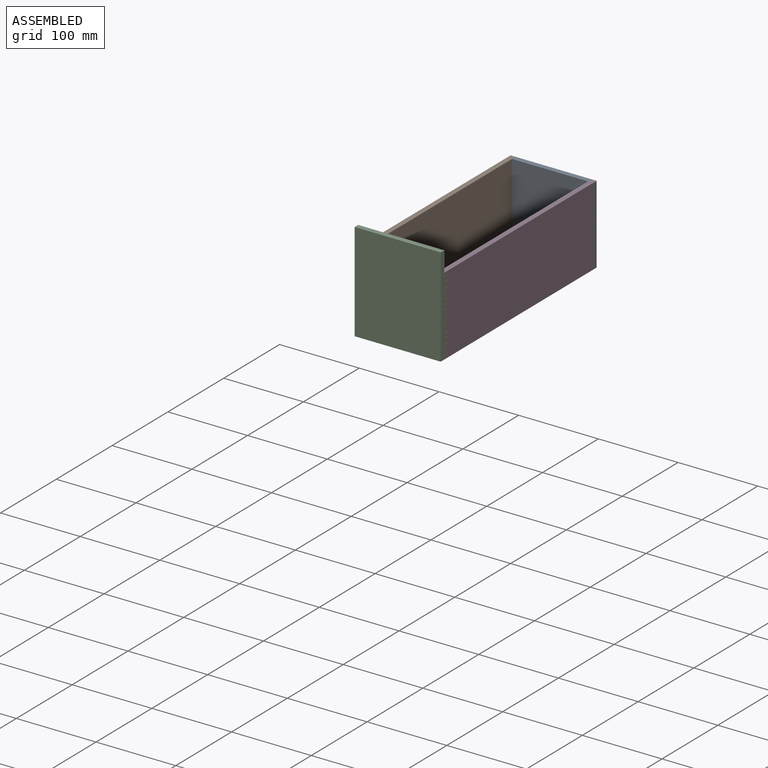
[diagram: assembled view]
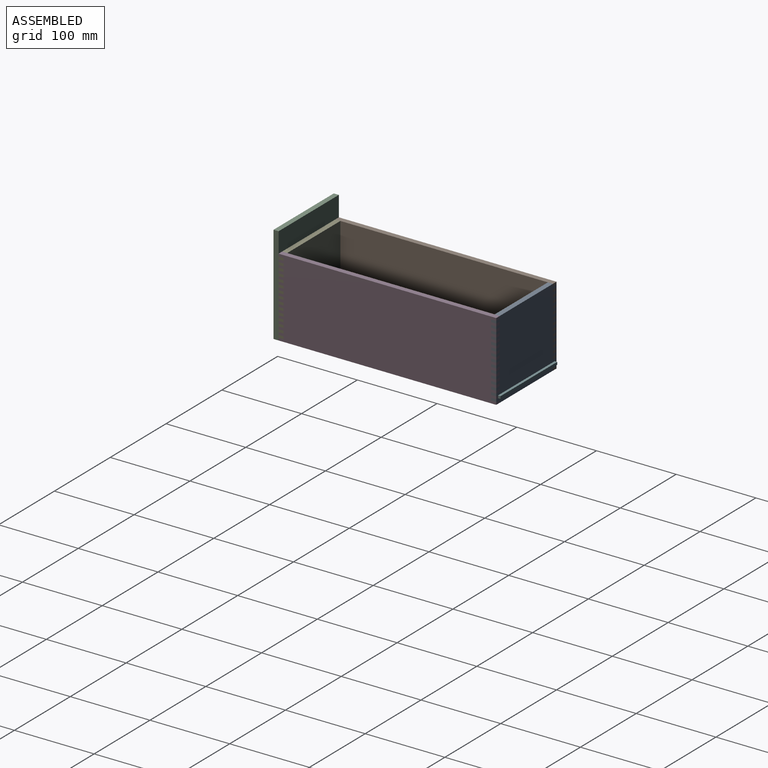
[diagram: assembled view, second angle]
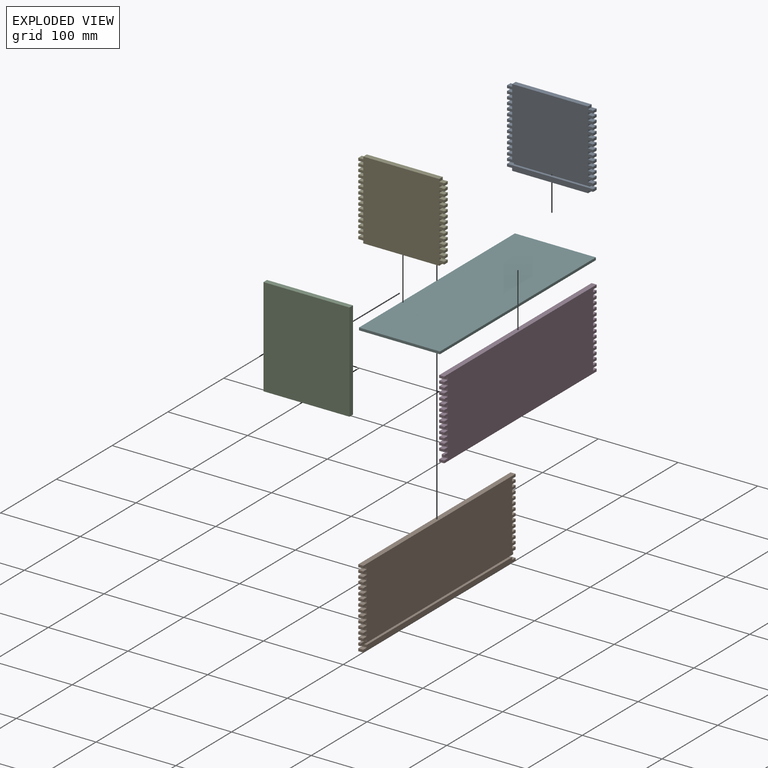
[diagram: exploded view]
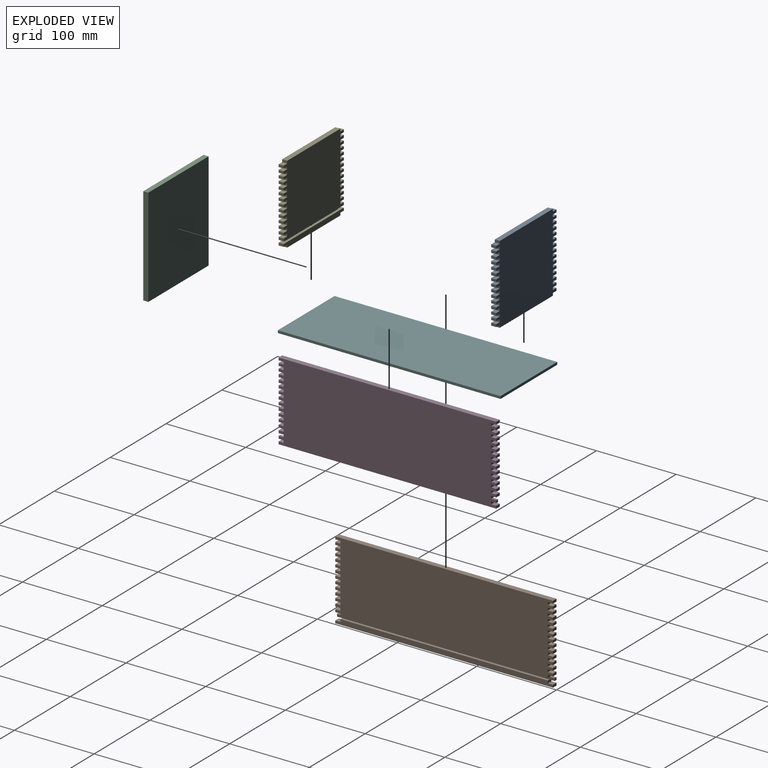
[diagram: exploded view, second angle]
ASSEMBLY  parts=6 mates=5
PART A: 126 faces, bbox 108x6.4x98.4 mm
  f0: plane 107.95x6.35mm, normal (0,-1,0), area 645.2mm2, adj f2,f17,f61,f64,f65,f68,f124,f125
  f1: plane 3.18x3.18mm, normal (-1,0,0), area 10.1mm2, adj f18,f60,f61,f66
  f2: plane 6.35x3.18mm, normal (-1,0,0), area 20.2mm2, adj f0,f18,f61,f65
  f3: plane 6.35x3.18mm, normal (-1,0,0), area 20.2mm2, adj f18,f20,f22,f63
  f4: plane 6.35x3.18mm, normal (-1,0,0), area 20.2mm2, adj f18,f20,f23,f25
  f5: plane 6.35x3.18mm, normal (-1,0,0), area 20.2mm2, adj f18,f20,f26,f28
  f6: plane 6.35x3.18mm, normal (-1,0,0), area 20.2mm2, adj f18,f20,f29,f31
  f7: plane 6.35x3.18mm, normal (-1,0,0), area 20.2mm2, adj f18,f20,f32,f34
  f8: plane 6.35x3.18mm, normal (-1,0,0), area 20.2mm2, adj f18,f20,f35,f37
  f9: plane 6.35x3.18mm, normal (-1,0,0), area 20.2mm2, adj f18,f20,f38,f40
  f10: plane 6.35x3.18mm, normal (-1,0,0), area 20.2mm2, adj f18,f20,f41,f43
  f11: plane 6.35x3.18mm, normal (-1,0,0), area 20.2mm2, adj f18,f20,f44,f46
  f12: plane 6.35x3.18mm, normal (-1,0,0), area 20.2mm2, adj f18,f20,f47,f49
  f13: plane 6.35x3.18mm, normal (-1,0,0), area 20.2mm2, adj f18,f20,f50,f52
  f14: plane 6.35x3.18mm, normal (-1,0,0), area 20.2mm2, adj f18,f20,f53,f55
  f15: plane 6.35x3.18mm, normal (-1,0,0), area 20.2mm2, adj f18,f20,f56,f58
  f16: plane 6.35x3.18mm, normal (-1,0,0), area 20.2mm2, adj f18,f20,f59,f60
  f17: plane 95.25x6.35mm, normal (0,0,-1), area 604.8mm2, adj f0,f18,f64,f124
  f18: plane 107.95x98.43mm, normal (0,1,0), area 9979.8mm2, adj f1,f2,f3,f4,f5,f6,f7,f8
  f19: plane 95.25x6.35mm, normal (0,0,1), area 604.8mm2, adj f18,f20,f62,f122
  f20: plane 107.95x88.9mm, normal (0,-1,0), area 9032.2mm2, adj f3,f4,f5,f6,f7,f8,f9,f10
  f21: plane 6.35x3.18mm, normal (-1,0,0), area 20.2mm2, adj f18,f20,f22,f23
  f22: plane 6.35x6.35mm, normal (0,0,-1), area 40.3mm2, adj f3,f18,f20,f21
  f23: plane 6.35x6.35mm, normal (0,0,1), area 40.3mm2, adj f4,f18,f20,f21
  f24: plane 6.35x3.18mm, normal (-1,0,0), area 20.2mm2, adj f18,f20,f25,f26
  f25: plane 6.35x6.35mm, normal (0,0,-1), area 40.3mm2, adj f4,f18,f20,f24
  f26: plane 6.35x6.35mm, normal (0,0,1), area 40.3mm2, adj f5,f18,f20,f24
  f27: plane 6.35x3.18mm, normal (-1,0,0), area 20.2mm2, adj f18,f20,f28,f29
  f28: plane 6.35x6.35mm, normal (0,0,-1), area 40.3mm2, adj f5,f18,f20,f27
  f29: plane 6.35x6.35mm, normal (0,0,1), area 40.3mm2, adj f6,f18,f20,f27
  f30: plane 6.35x3.18mm, normal (-1,0,0), area 20.2mm2, adj f18,f20,f31,f32
  f31: plane 6.35x6.35mm, normal (0,0,-1), area 40.3mm2, adj f6,f18,f20,f30
  f32: plane 6.35x6.35mm, normal (0,0,1), area 40.3mm2, adj f7,f18,f20,f30
  f33: plane 6.35x3.18mm, normal (-1,0,0), area 20.2mm2, adj f18,f20,f34,f35
  f34: plane 6.35x6.35mm, normal (0,0,-1), area 40.3mm2, adj f7,f18,f20,f33
  f35: plane 6.35x6.35mm, normal (0,0,1), area 40.3mm2, adj f8,f18,f20,f33
  f36: plane 6.35x3.18mm, normal (-1,0,0), area 20.2mm2, adj f18,f20,f37,f38
  f37: plane 6.35x6.35mm, normal (0,0,-1), area 40.3mm2, adj f8,f18,f20,f36
  f38: plane 6.35x6.35mm, normal (0,0,1), area 40.3mm2, adj f9,f18,f20,f36
  f39: plane 6.35x3.18mm, normal (-1,0,0), area 20.2mm2, adj f18,f20,f40,f41
  f40: plane 6.35x6.35mm, normal (0,0,-1), area 40.3mm2, adj f9,f18,f20,f39
  f41: plane 6.35x6.35mm, normal (0,0,1), area 40.3mm2, adj f10,f18,f20,f39
  f42: plane 6.35x3.18mm, normal (-1,0,0), area 20.2mm2, adj f18,f20,f43,f44
  f43: plane 6.35x6.35mm, normal (0,0,-1), area 40.3mm2, adj f10,f18,f20,f42
  f44: plane 6.35x6.35mm, normal (0,0,1), area 40.3mm2, adj f11,f18,f20,f42
  f45: plane 6.35x3.18mm, normal (-1,0,0), area 20.2mm2, adj f18,f20,f46,f47
  f46: plane 6.35x6.35mm, normal (0,0,-1), area 40.3mm2, adj f11,f18,f20,f45
  f47: plane 6.35x6.35mm, normal (0,0,1), area 40.3mm2, adj f12,f18,f20,f45
  f48: plane 6.35x3.18mm, normal (-1,0,0), area 20.2mm2, adj f18,f20,f49,f50
  f49: plane 6.35x6.35mm, normal (0,0,-1), area 40.3mm2, adj f12,f18,f20,f48
  f50: plane 6.35x6.35mm, normal (0,0,1), area 40.3mm2, adj f13,f18,f20,f48
  f51: plane 6.35x3.18mm, normal (-1,0,0), area 20.2mm2, adj f18,f20,f52,f53
  f52: plane 6.35x6.35mm, normal (0,0,-1), area 40.3mm2, adj f13,f18,f20,f51
  f53: plane 6.35x6.35mm, normal (0,0,1), area 40.3mm2, adj f14,f18,f20,f51
  f54: plane 6.35x3.18mm, normal (-1,0,0), area 20.2mm2, adj f18,f20,f55,f56
  f55: plane 6.35x6.35mm, normal (0,0,-1), area 40.3mm2, adj f14,f18,f20,f54
  f56: plane 6.35x6.35mm, normal (0,0,1), area 40.3mm2, adj f15,f18,f20,f54
  f57: plane 6.35x3.18mm, normal (-1,0,0), area 20.2mm2, adj f18,f20,f58,f59
  f58: plane 6.35x6.35mm, normal (0,0,-1), area 40.3mm2, adj f15,f18,f20,f57
  f59: plane 6.35x6.35mm, normal (0,0,1), area 40.3mm2, adj f16,f18,f20,f57
  f60: plane 107.95x6.35mm, normal (0,0,-1), area 383.1mm2, adj f1,f16,f18,f20,f66,f67,f82
  f61: plane 107.95x6.35mm, normal (0,0,1), area 383.1mm2, adj f0,f1,f2,f18,f66,f67,f68
  f62: plane 6.35x3.18mm, normal (-1,0,0), area 20.2mm2, adj f18,f19,f20,f63
  f63: plane 6.35x6.35mm, normal (0,0,1), area 40.3mm2, adj f3,f18,f20,f62
  f64: plane 6.35x3.18mm, normal (-1,0,0), area 20.2mm2, adj f0,f17,f18,f65
  f65: plane 6.35x6.35mm, normal (0,0,-1), area 40.3mm2, adj f0,f2,f18,f64
  f66: plane 95.25x3.18mm, normal (0,-1,0), area 302.4mm2, adj f1,f60,f61,f67
  f67: plane 3.18x3.18mm, normal (1,0,0), area 10.1mm2, adj f18,f60,f61,f66
  f68: plane 6.35x3.18mm, normal (1,0,0), area 20.2mm2, adj f0,f18,f61,f125
  f69: plane 6.35x3.18mm, normal (1,0,0), area 20.2mm2, adj f18,f20,f84,f123
  f70: plane 6.35x3.18mm, normal (1,0,0), area 20.2mm2, adj f18,f20,f85,f87
  f71: plane 6.35x3.18mm, normal (1,0,0), area 20.2mm2, adj f18,f20,f88,f90
  f72: plane 6.35x3.18mm, normal (1,0,0), area 20.2mm2, adj f18,f20,f91,f93
  f73: plane 6.35x3.18mm, normal (1,0,0), area 20.2mm2, adj f18,f20,f94,f96
  f74: plane 6.35x3.18mm, normal (1,0,0), area 20.2mm2, adj f18,f20,f97,f99
  f75: plane 6.35x3.18mm, normal (1,0,0), area 20.2mm2, adj f18,f20,f100,f102
  f76: plane 6.35x3.18mm, normal (1,0,0), area 20.2mm2, adj f18,f20,f103,f105
  f77: plane 6.35x3.18mm, normal (1,0,0), area 20.2mm2, adj f18,f20,f106,f108
  f78: plane 6.35x3.18mm, normal (1,0,0), area 20.2mm2, adj f18,f20,f109,f111
  f79: plane 6.35x3.18mm, normal (1,0,0), area 20.2mm2, adj f18,f20,f112,f114
  f80: plane 6.35x3.18mm, normal (1,0,0), area 20.2mm2, adj f18,f20,f115,f117
  f81: plane 6.35x3.18mm, normal (1,0,0), area 20.2mm2, adj f18,f20,f118,f120
  f82: plane 6.35x3.18mm, normal (1,0,0), area 20.2mm2, adj f18,f20,f60,f121
  f83: plane 6.35x3.18mm, normal (1,0,0), area 20.2mm2, adj f18,f20,f84,f85
  f84: plane 6.35x6.35mm, normal (0,0,-1), area 40.3mm2, adj f18,f20,f69,f83
  f85: plane 6.35x6.35mm, normal (0,0,1), area 40.3mm2, adj f18,f20,f70,f83
  f86: plane 6.35x3.18mm, normal (1,0,0), area 20.2mm2, adj f18,f20,f87,f88
  f87: plane 6.35x6.35mm, normal (0,0,-1), area 40.3mm2, adj f18,f20,f70,f86
  f88: plane 6.35x6.35mm, normal (0,0,1), area 40.3mm2, adj f18,f20,f71,f86
  f89: plane 6.35x3.18mm, normal (1,0,0), area 20.2mm2, adj f18,f20,f90,f91
  f90: plane 6.35x6.35mm, normal (0,0,-1), area 40.3mm2, adj f18,f20,f71,f89
  f91: plane 6.35x6.35mm, normal (0,0,1), area 40.3mm2, adj f18,f20,f72,f89
  f92: plane 6.35x3.18mm, normal (1,0,0), area 20.2mm2, adj f18,f20,f93,f94
  f93: plane 6.35x6.35mm, normal (0,0,-1), area 40.3mm2, adj f18,f20,f72,f92
  f94: plane 6.35x6.35mm, normal (0,0,1), area 40.3mm2, adj f18,f20,f73,f92
  f95: plane 6.35x3.18mm, normal (1,0,0), area 20.2mm2, adj f18,f20,f96,f97
  f96: plane 6.35x6.35mm, normal (0,0,-1), area 40.3mm2, adj f18,f20,f73,f95
  f97: plane 6.35x6.35mm, normal (0,0,1), area 40.3mm2, adj f18,f20,f74,f95
  f98: plane 6.35x3.18mm, normal (1,0,0), area 20.2mm2, adj f18,f20,f99,f100
  f99: plane 6.35x6.35mm, normal (0,0,-1), area 40.3mm2, adj f18,f20,f74,f98
  f100: plane 6.35x6.35mm, normal (0,0,1), area 40.3mm2, adj f18,f20,f75,f98
  f101: plane 6.35x3.18mm, normal (1,0,0), area 20.2mm2, adj f18,f20,f102,f103
  f102: plane 6.35x6.35mm, normal (0,0,-1), area 40.3mm2, adj f18,f20,f75,f101
  f103: plane 6.35x6.35mm, normal (0,0,1), area 40.3mm2, adj f18,f20,f76,f101
  f104: plane 6.35x3.18mm, normal (1,0,0), area 20.2mm2, adj f18,f20,f105,f106
  f105: plane 6.35x6.35mm, normal (0,0,-1), area 40.3mm2, adj f18,f20,f76,f104
  f106: plane 6.35x6.35mm, normal (0,0,1), area 40.3mm2, adj f18,f20,f77,f104
  f107: plane 6.35x3.18mm, normal (1,0,0), area 20.2mm2, adj f18,f20,f108,f109
  f108: plane 6.35x6.35mm, normal (0,0,-1), area 40.3mm2, adj f18,f20,f77,f107
  f109: plane 6.35x6.35mm, normal (0,0,1), area 40.3mm2, adj f18,f20,f78,f107
  f110: plane 6.35x3.18mm, normal (1,0,0), area 20.2mm2, adj f18,f20,f111,f112
  f111: plane 6.35x6.35mm, normal (0,0,-1), area 40.3mm2, adj f18,f20,f78,f110
  f112: plane 6.35x6.35mm, normal (0,0,1), area 40.3mm2, adj f18,f20,f79,f110
  f113: plane 6.35x3.18mm, normal (1,0,0), area 20.2mm2, adj f18,f20,f114,f115
  f114: plane 6.35x6.35mm, normal (0,0,-1), area 40.3mm2, adj f18,f20,f79,f113
  f115: plane 6.35x6.35mm, normal (0,0,1), area 40.3mm2, adj f18,f20,f80,f113
  f116: plane 6.35x3.18mm, normal (1,0,0), area 20.2mm2, adj f18,f20,f117,f118
  f117: plane 6.35x6.35mm, normal (0,0,-1), area 40.3mm2, adj f18,f20,f80,f116
  f118: plane 6.35x6.35mm, normal (0,0,1), area 40.3mm2, adj f18,f20,f81,f116
  f119: plane 6.35x3.18mm, normal (1,0,0), area 20.2mm2, adj f18,f20,f120,f121
  f120: plane 6.35x6.35mm, normal (0,0,-1), area 40.3mm2, adj f18,f20,f81,f119
  f121: plane 6.35x6.35mm, normal (0,0,1), area 40.3mm2, adj f18,f20,f82,f119
  f122: plane 6.35x3.18mm, normal (1,0,0), area 20.2mm2, adj f18,f19,f20,f123
  f123: plane 6.35x6.35mm, normal (0,0,1), area 40.3mm2, adj f18,f20,f69,f122
  f124: plane 6.35x3.18mm, normal (1,0,0), area 20.2mm2, adj f0,f17,f18,f125
  f125: plane 6.35x6.35mm, normal (0,0,-1), area 40.3mm2, adj f0,f18,f68,f124
PART B: 130 faces, bbox 6.4x273.1x98.4 mm
  f0: plane 3.18x3.18mm, normal (0,1,0), area 10.1mm2, adj f3,f60,f65,f68
  f1: plane 273.05x88.9mm, normal (1,0,0), area 23709.6mm2, adj f4,f5,f6,f7,f8,f9,f10,f11
  f2: plane 6.35x3.18mm, normal (0,1,0), area 20.2mm2, adj f3,f18,f20,f63
  f3: plane 273.05x98.43mm, normal (-1,0,0), area 26270.1mm2, adj f0,f2,f4,f5,f6,f7,f8,f9
  f4: plane 6.35x3.18mm, normal (0,1,0), area 20.2mm2, adj f1,f3,f57,f62
  f5: plane 6.35x3.18mm, normal (0,1,0), area 20.2mm2, adj f1,f3,f54,f59
  f6: plane 6.35x3.18mm, normal (0,1,0), area 20.2mm2, adj f1,f3,f51,f56
  f7: plane 6.35x3.18mm, normal (0,1,0), area 20.2mm2, adj f1,f3,f48,f53
  f8: plane 6.35x3.18mm, normal (0,1,0), area 20.2mm2, adj f1,f3,f45,f50
  f9: plane 6.35x3.18mm, normal (0,1,0), area 20.2mm2, adj f1,f3,f42,f47
  f10: plane 6.35x3.18mm, normal (0,1,0), area 20.2mm2, adj f1,f3,f39,f44
  f11: plane 6.35x3.18mm, normal (0,1,0), area 20.2mm2, adj f1,f3,f36,f41
  f12: plane 6.35x3.18mm, normal (0,1,0), area 20.2mm2, adj f1,f3,f33,f38
  f13: plane 6.35x3.18mm, normal (0,1,0), area 20.2mm2, adj f1,f3,f30,f35
  f14: plane 6.35x3.18mm, normal (0,1,0), area 20.2mm2, adj f1,f3,f27,f32
  f15: plane 6.35x3.18mm, normal (0,1,0), area 20.2mm2, adj f1,f3,f24,f29
  f16: plane 6.35x3.18mm, normal (0,1,0), area 20.2mm2, adj f1,f3,f21,f26
  f17: plane 273.05x6.35mm, normal (0,0,1), area 1733.9mm2, adj f1,f3,f19,f84
  f18: plane 273.05x6.35mm, normal (0,0,-1), area 1733.9mm2, adj f2,f3,f20,f70
  f19: plane 6.35x3.18mm, normal (0,1,0), area 20.2mm2, adj f1,f3,f17,f23
  f20: plane 273.05x6.35mm, normal (1,0,0), area 1693.5mm2, adj f2,f18,f63,f64,f67,f70,f127,f128
  f21: plane 6.35x6.35mm, normal (0,0,1), area 40.3mm2, adj f1,f3,f16,f22
  f22: plane 6.35x3.18mm, normal (0,1,0), area 20.2mm2, adj f1,f3,f21,f23
  f23: plane 6.35x6.35mm, normal (0,0,-1), area 40.3mm2, adj f1,f3,f19,f22
  f24: plane 6.35x6.35mm, normal (0,0,1), area 40.3mm2, adj f1,f3,f15,f25
  f25: plane 6.35x3.18mm, normal (0,1,0), area 20.2mm2, adj f1,f3,f24,f26
  f26: plane 6.35x6.35mm, normal (0,0,-1), area 40.3mm2, adj f1,f3,f16,f25
  f27: plane 6.35x6.35mm, normal (0,0,1), area 40.3mm2, adj f1,f3,f14,f28
  f28: plane 6.35x3.18mm, normal (0,1,0), area 20.2mm2, adj f1,f3,f27,f29
  f29: plane 6.35x6.35mm, normal (0,0,-1), area 40.3mm2, adj f1,f3,f15,f28
  f30: plane 6.35x6.35mm, normal (0,0,1), area 40.3mm2, adj f1,f3,f13,f31
  f31: plane 6.35x3.18mm, normal (0,1,0), area 20.2mm2, adj f1,f3,f30,f32
  f32: plane 6.35x6.35mm, normal (0,0,-1), area 40.3mm2, adj f1,f3,f14,f31
  f33: plane 6.35x6.35mm, normal (0,0,1), area 40.3mm2, adj f1,f3,f12,f34
  f34: plane 6.35x3.18mm, normal (0,1,0), area 20.2mm2, adj f1,f3,f33,f35
  f35: plane 6.35x6.35mm, normal (0,0,-1), area 40.3mm2, adj f1,f3,f13,f34
  f36: plane 6.35x6.35mm, normal (0,0,1), area 40.3mm2, adj f1,f3,f11,f37
  f37: plane 6.35x3.18mm, normal (0,1,0), area 20.2mm2, adj f1,f3,f36,f38
  f38: plane 6.35x6.35mm, normal (0,0,-1), area 40.3mm2, adj f1,f3,f12,f37
  f39: plane 6.35x6.35mm, normal (0,0,1), area 40.3mm2, adj f1,f3,f10,f40
  f40: plane 6.35x3.18mm, normal (0,1,0), area 20.2mm2, adj f1,f3,f39,f41
  f41: plane 6.35x6.35mm, normal (0,0,-1), area 40.3mm2, adj f1,f3,f11,f40
  f42: plane 6.35x6.35mm, normal (0,0,1), area 40.3mm2, adj f1,f3,f9,f43
  f43: plane 6.35x3.18mm, normal (0,1,0), area 20.2mm2, adj f1,f3,f42,f44
  f44: plane 6.35x6.35mm, normal (0,0,-1), area 40.3mm2, adj f1,f3,f10,f43
  f45: plane 6.35x6.35mm, normal (0,0,1), area 40.3mm2, adj f1,f3,f8,f46
  f46: plane 6.35x3.18mm, normal (0,1,0), area 20.2mm2, adj f1,f3,f45,f47
  f47: plane 6.35x6.35mm, normal (0,0,-1), area 40.3mm2, adj f1,f3,f9,f46
  f48: plane 6.35x6.35mm, normal (0,0,1), area 40.3mm2, adj f1,f3,f7,f49
  f49: plane 6.35x3.18mm, normal (0,1,0), area 20.2mm2, adj f1,f3,f48,f50
  f50: plane 6.35x6.35mm, normal (0,0,-1), area 40.3mm2, adj f1,f3,f8,f49
  f51: plane 6.35x6.35mm, normal (0,0,1), area 40.3mm2, adj f1,f3,f6,f52
  f52: plane 6.35x3.18mm, normal (0,1,0), area 20.2mm2, adj f1,f3,f51,f53
  f53: plane 6.35x6.35mm, normal (0,0,-1), area 40.3mm2, adj f1,f3,f7,f52
  f54: plane 6.35x6.35mm, normal (0,0,1), area 40.3mm2, adj f1,f3,f5,f55
  f55: plane 6.35x3.18mm, normal (0,1,0), area 20.2mm2, adj f1,f3,f54,f56
  f56: plane 6.35x6.35mm, normal (0,0,-1), area 40.3mm2, adj f1,f3,f6,f55
  f57: plane 6.35x6.35mm, normal (0,0,1), area 40.3mm2, adj f1,f3,f4,f58
  f58: plane 6.35x3.18mm, normal (0,1,0), area 20.2mm2, adj f1,f3,f57,f59
  f59: plane 6.35x6.35mm, normal (0,0,-1), area 40.3mm2, adj f1,f3,f5,f58
  f60: plane 6.35x3.18mm, normal (0,0,1), area 20.2mm2, adj f0,f3,f61,f68
  f61: plane 6.35x3.18mm, normal (0,1,0), area 20.2mm2, adj f1,f3,f60,f62,f66
  f62: plane 6.35x6.35mm, normal (0,0,-1), area 40.3mm2, adj f1,f3,f4,f61
  f63: plane 6.35x6.35mm, normal (0,0,1), area 40.3mm2, adj f2,f3,f20,f64
  f64: plane 6.35x3.18mm, normal (0,1,0), area 20.2mm2, adj f3,f20,f63,f65,f67
  f65: plane 6.35x3.18mm, normal (0,0,-1), area 20.2mm2, adj f0,f3,f64,f68
  f66: plane 260.35x3.18mm, normal (0,0,-1), area 826.6mm2, adj f1,f61,f68,f125
  f67: plane 260.35x3.18mm, normal (0,0,1), area 826.6mm2, adj f20,f64,f68,f128
  f68: plane 273.05x3.18mm, normal (1,0,0), area 866.9mm2, adj f0,f60,f65,f66,f67,f69,f124,f129
  f69: plane 3.18x3.18mm, normal (0,-1,0), area 10.1mm2, adj f3,f68,f124,f129
  f70: plane 6.35x3.18mm, normal (0,-1,0), area 20.2mm2, adj f3,f18,f20,f127
  f71: plane 6.35x3.18mm, normal (0,-1,0), area 20.2mm2, adj f1,f3,f121,f126
  f72: plane 6.35x3.18mm, normal (0,-1,0), area 20.2mm2, adj f1,f3,f118,f123
  f73: plane 6.35x3.18mm, normal (0,-1,0), area 20.2mm2, adj f1,f3,f115,f120
  f74: plane 6.35x3.18mm, normal (0,-1,0), area 20.2mm2, adj f1,f3,f112,f117
  f75: plane 6.35x3.18mm, normal (0,-1,0), area 20.2mm2, adj f1,f3,f109,f114
  f76: plane 6.35x3.18mm, normal (0,-1,0), area 20.2mm2, adj f1,f3,f106,f111
  f77: plane 6.35x3.18mm, normal (0,-1,0), area 20.2mm2, adj f1,f3,f103,f108
  f78: plane 6.35x3.18mm, normal (0,-1,0), area 20.2mm2, adj f1,f3,f100,f105
  f79: plane 6.35x3.18mm, normal (0,-1,0), area 20.2mm2, adj f1,f3,f97,f102
  f80: plane 6.35x3.18mm, normal (0,-1,0), area 20.2mm2, adj f1,f3,f94,f99
  f81: plane 6.35x3.18mm, normal (0,-1,0), area 20.2mm2, adj f1,f3,f91,f96
  f82: plane 6.35x3.18mm, normal (0,-1,0), area 20.2mm2, adj f1,f3,f88,f93
  f83: plane 6.35x3.18mm, normal (0,-1,0), area 20.2mm2, adj f1,f3,f85,f90
  f84: plane 6.35x3.18mm, normal (0,-1,0), area 20.2mm2, adj f1,f3,f17,f87
  f85: plane 6.35x6.35mm, normal (0,0,1), area 40.3mm2, adj f1,f3,f83,f86
  f86: plane 6.35x3.18mm, normal (0,-1,0), area 20.2mm2, adj f1,f3,f85,f87
  f87: plane 6.35x6.35mm, normal (0,0,-1), area 40.3mm2, adj f1,f3,f84,f86
  f88: plane 6.35x6.35mm, normal (0,0,1), area 40.3mm2, adj f1,f3,f82,f89
  f89: plane 6.35x3.18mm, normal (0,-1,0), area 20.2mm2, adj f1,f3,f88,f90
  f90: plane 6.35x6.35mm, normal (0,0,-1), area 40.3mm2, adj f1,f3,f83,f89
  f91: plane 6.35x6.35mm, normal (0,0,1), area 40.3mm2, adj f1,f3,f81,f92
  f92: plane 6.35x3.18mm, normal (0,-1,0), area 20.2mm2, adj f1,f3,f91,f93
  f93: plane 6.35x6.35mm, normal (0,0,-1), area 40.3mm2, adj f1,f3,f82,f92
  f94: plane 6.35x6.35mm, normal (0,0,1), area 40.3mm2, adj f1,f3,f80,f95
  f95: plane 6.35x3.18mm, normal (0,-1,0), area 20.2mm2, adj f1,f3,f94,f96
  f96: plane 6.35x6.35mm, normal (0,0,-1), area 40.3mm2, adj f1,f3,f81,f95
  f97: plane 6.35x6.35mm, normal (0,0,1), area 40.3mm2, adj f1,f3,f79,f98
  f98: plane 6.35x3.18mm, normal (0,-1,0), area 20.2mm2, adj f1,f3,f97,f99
  f99: plane 6.35x6.35mm, normal (0,0,-1), area 40.3mm2, adj f1,f3,f80,f98
  f100: plane 6.35x6.35mm, normal (0,0,1), area 40.3mm2, adj f1,f3,f78,f101
  f101: plane 6.35x3.18mm, normal (0,-1,0), area 20.2mm2, adj f1,f3,f100,f102
  f102: plane 6.35x6.35mm, normal (0,0,-1), area 40.3mm2, adj f1,f3,f79,f101
  f103: plane 6.35x6.35mm, normal (0,0,1), area 40.3mm2, adj f1,f3,f77,f104
  f104: plane 6.35x3.18mm, normal (0,-1,0), area 20.2mm2, adj f1,f3,f103,f105
  f105: plane 6.35x6.35mm, normal (0,0,-1), area 40.3mm2, adj f1,f3,f78,f104
  f106: plane 6.35x6.35mm, normal (0,0,1), area 40.3mm2, adj f1,f3,f76,f107
  f107: plane 6.35x3.18mm, normal (0,-1,0), area 20.2mm2, adj f1,f3,f106,f108
  f108: plane 6.35x6.35mm, normal (0,0,-1), area 40.3mm2, adj f1,f3,f77,f107
  f109: plane 6.35x6.35mm, normal (0,0,1), area 40.3mm2, adj f1,f3,f75,f110
  f110: plane 6.35x3.18mm, normal (0,-1,0), area 20.2mm2, adj f1,f3,f109,f111
  f111: plane 6.35x6.35mm, normal (0,0,-1), area 40.3mm2, adj f1,f3,f76,f110
  f112: plane 6.35x6.35mm, normal (0,0,1), area 40.3mm2, adj f1,f3,f74,f113
  f113: plane 6.35x3.18mm, normal (0,-1,0), area 20.2mm2, adj f1,f3,f112,f114
  f114: plane 6.35x6.35mm, normal (0,0,-1), area 40.3mm2, adj f1,f3,f75,f113
  f115: plane 6.35x6.35mm, normal (0,0,1), area 40.3mm2, adj f1,f3,f73,f116
  f116: plane 6.35x3.18mm, normal (0,-1,0), area 20.2mm2, adj f1,f3,f115,f117
  f117: plane 6.35x6.35mm, normal (0,0,-1), area 40.3mm2, adj f1,f3,f74,f116
  f118: plane 6.35x6.35mm, normal (0,0,1), area 40.3mm2, adj f1,f3,f72,f119
  f119: plane 6.35x3.18mm, normal (0,-1,0), area 20.2mm2, adj f1,f3,f118,f120
  f120: plane 6.35x6.35mm, normal (0,0,-1), area 40.3mm2, adj f1,f3,f73,f119
  f121: plane 6.35x6.35mm, normal (0,0,1), area 40.3mm2, adj f1,f3,f71,f122
  f122: plane 6.35x3.18mm, normal (0,-1,0), area 20.2mm2, adj f1,f3,f121,f123
  f123: plane 6.35x6.35mm, normal (0,0,-1), area 40.3mm2, adj f1,f3,f72,f122
  f124: plane 6.35x3.18mm, normal (0,0,1), area 20.2mm2, adj f3,f68,f69,f125
  f125: plane 6.35x3.18mm, normal (0,-1,0), area 20.2mm2, adj f1,f3,f66,f124,f126
  f126: plane 6.35x6.35mm, normal (0,0,-1), area 40.3mm2, adj f1,f3,f71,f125
  f127: plane 6.35x6.35mm, normal (0,0,1), area 40.3mm2, adj f3,f20,f70,f128
  f128: plane 6.35x3.18mm, normal (0,-1,0), area 20.2mm2, adj f3,f20,f67,f127,f129
  f129: plane 6.35x3.18mm, normal (0,0,-1), area 20.2mm2, adj f3,f68,f69,f128
PART C: 6 faces, bbox 108x6.4x123.8 mm
  f0: plane 107.95x6.35mm, normal (0,0,1), area 685.5mm2, adj f1,f3,f4,f5
  f1: plane 123.83x6.35mm, normal (-1,0,0), area 786.3mm2, adj f0,f2,f4,f5
  f2: plane 107.95x6.35mm, normal (0,0,-1), area 685.5mm2, adj f1,f3,f4,f5
  f3: plane 123.83x6.35mm, normal (1,0,0), area 786.3mm2, adj f0,f2,f4,f5
  f4: plane 123.83x107.95mm, normal (0,-1,0), area 13366.9mm2, adj f0,f1,f2,f3
  f5: plane 123.83x107.95mm, normal (0,1,0), area 13366.9mm2, adj f0,f1,f2,f3
PART D: same geometry as B
PART E: same geometry as A
PART F: 6 faces, bbox 101.6x279.4x3.2 mm
  f0: plane 279.4x3.18mm, normal (-1,0,0), area 887.1mm2, adj f1,f3,f4,f5
  f1: plane 101.6x3.18mm, normal (0,-1,0), area 322.6mm2, adj f0,f2,f4,f5
  f2: plane 279.4x3.18mm, normal (1,0,0), area 887.1mm2, adj f1,f3,f4,f5
  f3: plane 101.6x3.18mm, normal (0,1,0), area 322.6mm2, adj f0,f2,f4,f5
  f4: plane 279.4x101.6mm, normal (0,0,1), area 28387mm2, adj f0,f1,f2,f3
  f5: plane 279.4x101.6mm, normal (0,0,-1), area 28387mm2, adj f0,f1,f2,f3
PLACE A at identity
PLACE B at identity fixed
PLACE C rot(axis=(-0.19,-0.24,0.95),0deg) t=(-184.33,-273.05,0)mm
PLACE D rot(axis=(0,0,1),180deg) t=(107.95,-273.05,0)mm
PLACE E rot(axis=(0,0,-1),180deg) t=(107.95,-273.05,0)mm
PLACE F t=(-122.62,60.74,6.35)mm
MATE fastened E.f123 <-> B.f87  axis (0,0,1) through (3.17,-269.88,95.25)mm
MATE fastened A.f123 <-> D.f87  axis (0,0,1) through (104.78,-3.18,95.25)mm
MATE fastened A.f63 <-> B.f23  axis (0,0,1) through (3.17,-3.18,95.25)mm
MATE fastened F.f2 <-> D.f68  axis (1,0,0) through (104.78,-136.53,7.94)mm
MATE fastened C.f5 <-> E.f18  axis (0,1,0) through (53.97,-273.05,0)mm
